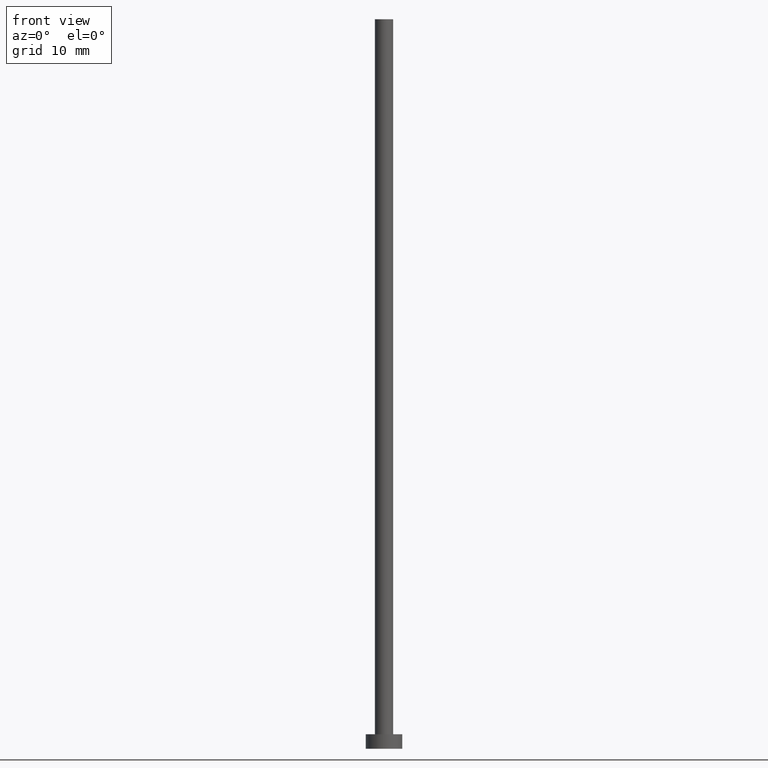
[diagram: clean part render]
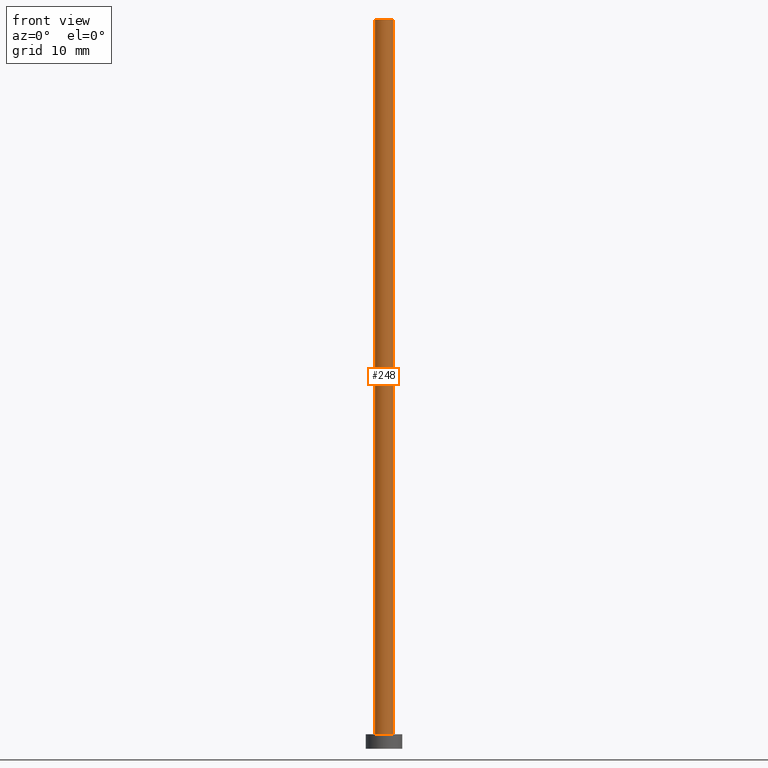
[diagram: same view with one face highlighted and labeled with its STEP entity id]
A machine part, front view. The second image highlights one B-rep face of the part: STEP entity #248.
In plain terms, the highlighted cylindrical surface (edge-blend (fillet) strip) has radius 1.25 mm, axis along (-0, -0, -1).
Its self-contained STEP definition (entity closure, byte-faithful):
#9 = CARTESIAN_POINT ( 'NONE',  ( 0.000000000000000000, 0.000000000000000000, 100.0000000000000000 ) ) ;
#25 = EDGE_CURVE ( 'NONE', #203, #169, #177, .T. ) ;
#26 = LINE ( 'NONE', #136, #86 ) ;
#32 = LINE ( 'NONE', #103, #158 ) ;
#36 = DIRECTION ( 'NONE',  ( 0.000000000000000000, 0.000000000000000000, 1.000000000000000000 ) ) ;
#42 = CARTESIAN_POINT ( 'NONE',  ( -1.250000000000000000, 0.000000000000000000, 100.0000000000000000 ) ) ;
#61 = CIRCLE ( 'NONE', #74, 1.250000000000000000 ) ;
#66 = ORIENTED_EDGE ( 'NONE', *, *, #69, .F. ) ;
#69 = EDGE_CURVE ( 'NONE', #87, #169, #26, .T. ) ;
#74 = AXIS2_PLACEMENT_3D ( 'NONE', #255, #238, #130 ) ;
#76 = EDGE_CURVE ( 'NONE', #109, #87, #61, .T. ) ;
#79 = AXIS2_PLACEMENT_3D ( 'NONE', #213, #36, #190 ) ;
#86 = VECTOR ( 'NONE', #172, 1000.000000000000000 ) ;
#87 = VERTEX_POINT ( 'NONE', #178 ) ;
#98 = ORIENTED_EDGE ( 'NONE', *, *, #196, .T. ) ;
#100 = CARTESIAN_POINT ( 'NONE',  ( -1.250000000000000000, 0.000000000000000000, 2.000000000000000000 ) ) ;
#103 = CARTESIAN_POINT ( 'NONE',  ( -1.250000000000000000, 0.000000000000000000, 100.0000000000000000 ) ) ;
#109 = VERTEX_POINT ( 'NONE', #42 ) ;
#120 = DIRECTION ( 'NONE',  ( -0.000000000000000000, -0.000000000000000000, -1.000000000000000000 ) ) ;
#130 = DIRECTION ( 'NONE',  ( 1.000000000000000000, 0.000000000000000000, 0.000000000000000000 ) ) ;
#136 = CARTESIAN_POINT ( 'NONE',  ( 1.250000000000000000, 1.530808498934191571E-16, 100.0000000000000000 ) ) ;
#139 = CARTESIAN_POINT ( 'NONE',  ( 1.250000000000000000, 1.530808498934191571E-16, 2.000000000000000000 ) ) ;
#145 = ORIENTED_EDGE ( 'NONE', *, *, #25, .T. ) ;
#157 = DIRECTION ( 'NONE',  ( -0.000000000000000000, -0.000000000000000000, -1.000000000000000000 ) ) ;
#158 = VECTOR ( 'NONE', #120, 1000.000000000000000 ) ;
#160 = DIRECTION ( 'NONE',  ( -1.000000000000000000, 0.000000000000000000, 0.000000000000000000 ) ) ;
#162 = CYLINDRICAL_SURFACE ( 'NONE', #231, 1.250000000000000000 ) ;
#169 = VERTEX_POINT ( 'NONE', #139 ) ;
#172 = DIRECTION ( 'NONE',  ( -0.000000000000000000, -0.000000000000000000, -1.000000000000000000 ) ) ;
#177 = CIRCLE ( 'NONE', #79, 1.250000000000000000 ) ;
#178 = CARTESIAN_POINT ( 'NONE',  ( 1.250000000000000000, 1.530808498934191571E-16, 100.0000000000000000 ) ) ;
#182 = EDGE_LOOP ( 'NONE', ( #66, #253, #98, #145 ) ) ;
#190 = DIRECTION ( 'NONE',  ( 1.000000000000000000, 0.000000000000000000, 0.000000000000000000 ) ) ;
#194 = FACE_OUTER_BOUND ( 'NONE', #182, .T. ) ;
#196 = EDGE_CURVE ( 'NONE', #109, #203, #32, .T. ) ;
#203 = VERTEX_POINT ( 'NONE', #100 ) ;
#213 = CARTESIAN_POINT ( 'NONE',  ( 0.000000000000000000, 0.000000000000000000, 2.000000000000000000 ) ) ;
#231 = AXIS2_PLACEMENT_3D ( 'NONE', #9, #157, #160 ) ;
#238 = DIRECTION ( 'NONE',  ( 0.000000000000000000, 0.000000000000000000, 1.000000000000000000 ) ) ;
#248 = ADVANCED_FACE ( 'NONE', ( #194 ), #162, .T. ) ;
#253 = ORIENTED_EDGE ( 'NONE', *, *, #76, .F. ) ;
#255 = CARTESIAN_POINT ( 'NONE',  ( 0.000000000000000000, 0.000000000000000000, 100.0000000000000000 ) ) ;